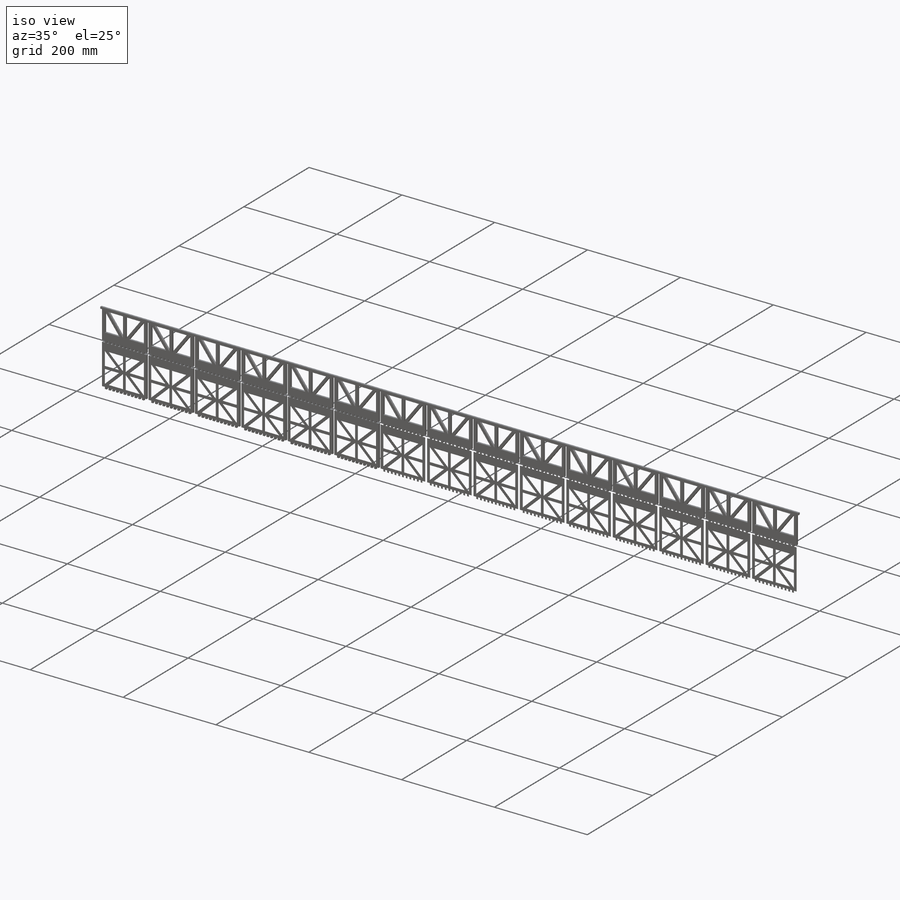
[diagram: iso view]
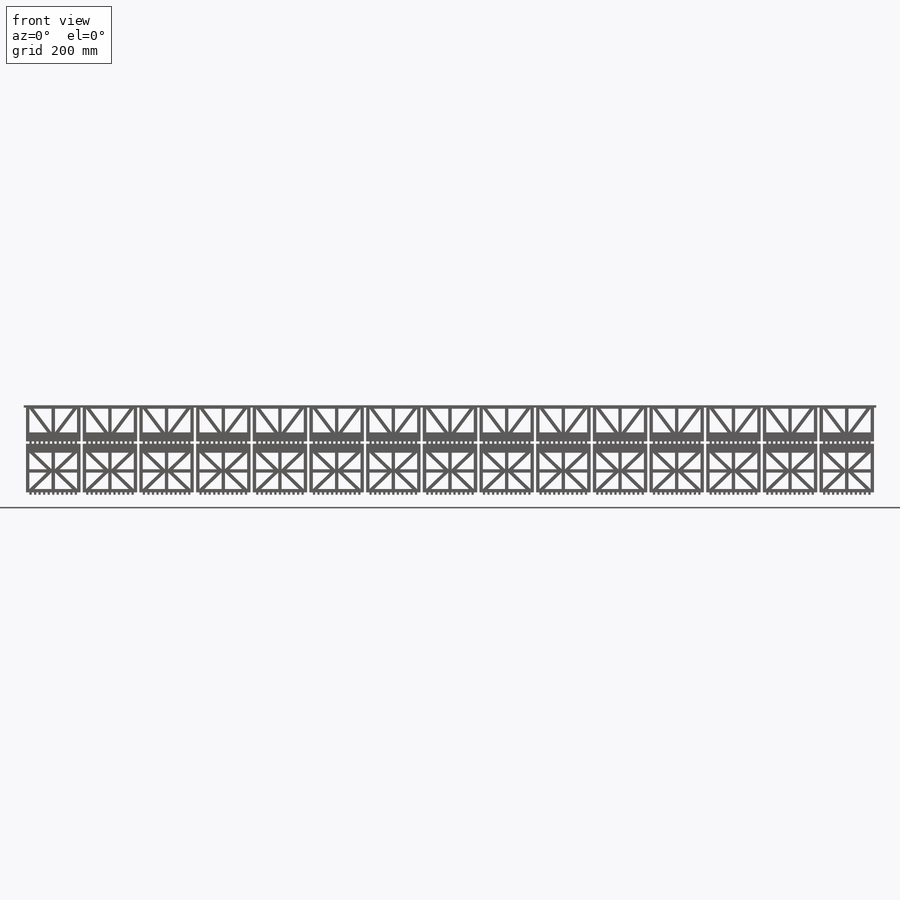
[diagram: front view]
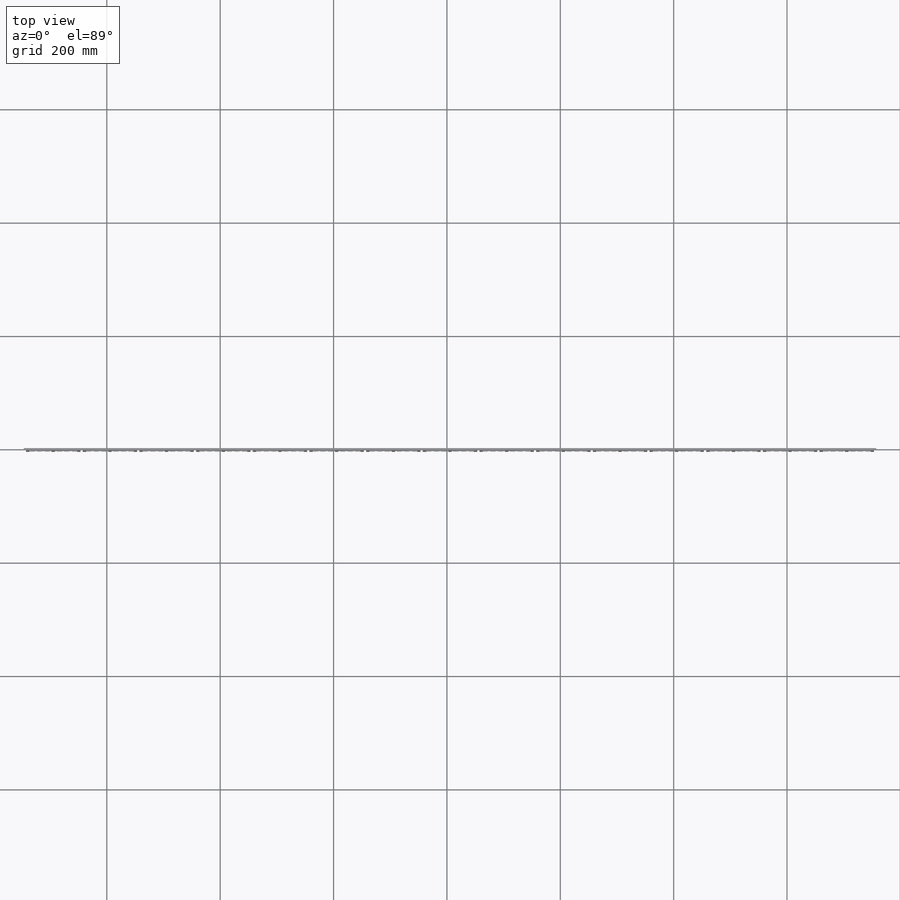
[diagram: top view]
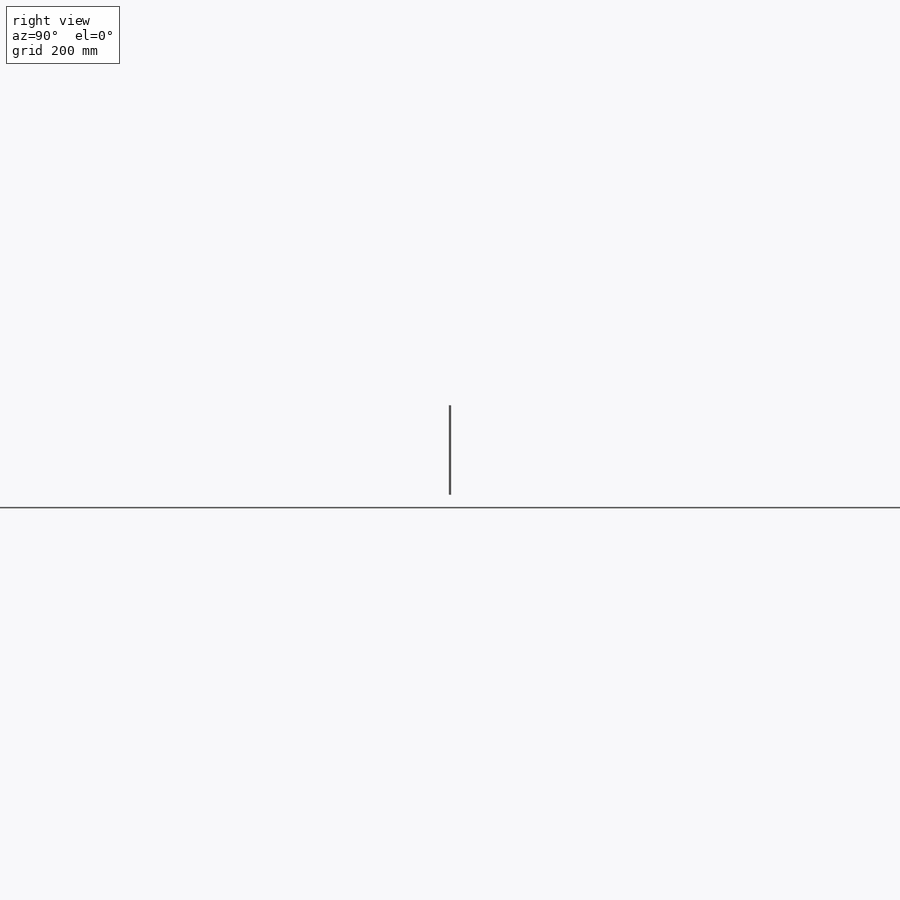
[diagram: right view]
SOLIDWORKS PART (.sldprt)
format: sldprt  version: not decoded by parser v0  size: 4,304,384 bytes
history: native  units: mm
features: sketch x5, cut_extrude x3, extrude x2, material x1 (+13 scaffold rows collapsed)
feature tree (24):
  scaffold x13  (default folders/planes/origin — collapsed)
  material  "Cedar"
  sketch  "Sketch1"  dims[c1.D1=63.73mm c1.D2=4.0mm c1.D3=10.0mm c1.D4=4.0mm c1.D5=4.0mm c2.D3=4.0mm c2.D4=4.0mm c2.D5=6.0mm c2.D6=10.0mm c2.D7=4.0mm c2.D8=1504.0mm c2.D9=4.0mm c2.D10=4.0mm c3.D9=4.0mm c3.D10=4.0mm c3.D11=100.0mm c3.D12=10.0mm c3.D13=4.0mm c4.D11=96.0mm c4.D14=4.0mm c4.D15=6.0mm c4.D16=4.0mm c4.D17=4.0mm c4.D18=4.0mm c4.D19=10.0mm c4.D20=48.0mm c4.D21=2.0mm c4.D22=2.0mm c4.D23=4.0mm c4.D24=4.0mm c4.D25=4.0mm c4.D26=4.0mm c4.D27=4.0mm c4.D28=4.0mm c4.D29=4.0mm c5.D26=4.0mm c5.D29=4.0mm c5.D30=4.0mm c5.D31=4.0mm c5.D32=4.0mm c5.D33=4.0mm c5.D19=15.0]
  extrude  "Boss-Extrude1"  Depth=4mm
  sketch  "Sketch2"  dims[c1.D1=6.0mm c1.D2=6.0mm c1.D3=~36.418482mm c2.D3=6.0deg c3.D3=6.0mm c3.D4=6.0mm c3.D5=6.0mm c3.D6=6.0mm c3.D7=6.0mm c3.D8=48.0mm c3.D9=27.38mm c4.D4=3.0mm c4.D9=27.38mm c4.D5=3.0mm c4.D10=6.0mm c5.D9=15.0]
  cut_extrude  "Cut-Extrude1"  Depth=4mm
  sketch  "Sketch5"  dims[c1.D1=4.0mm c1.D2=86.0mm c1.D3=4.0mm c1.D4=4.0mm c1.D5=10.0mm c1.D6=4.0mm c1.D7=4.0mm c1.D8=6.0mm c1.D9=4.0mm c1.D10=4.0mm c1.D11=4.0mm c1.D12=10.0mm c1.D13=6.0mm c1.D14=96.0mm c1.D15=4.0mm c2.D4=10.0mm c3.D4=15.0]
  extrude  "Boss-Extrude2"  Depth=4mm
  sketch  "Sketch6"  dims[D1=3.0mm D2=6.0mm D3=6.0mm D4=3.0mm D5=6.0mm]
  cut_extrude  "Cut-Extrude2"  Depth=4mm
  sketch  "Sketch7"  dims[D1=4.0mm]
  cut_extrude  "Cut-Extrude3"  Depth=10mm
decode coverage: 10 of 10 modeling features carry decoded parameters
note: ~ marks probable driven/reference dimensions
note: suppression state not decoded; provenance and decode notes live in map.json
